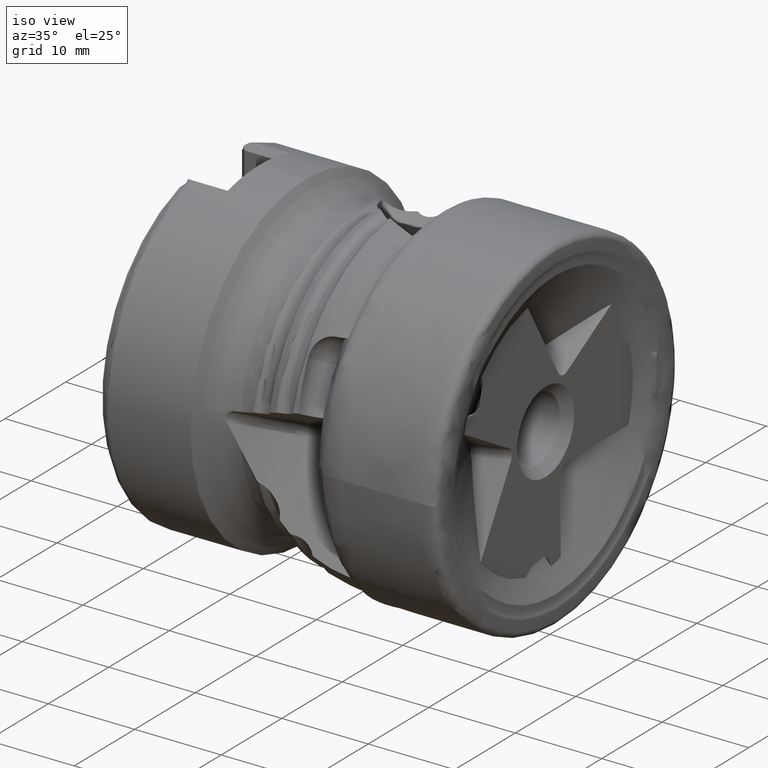
[diagram: clean part render]
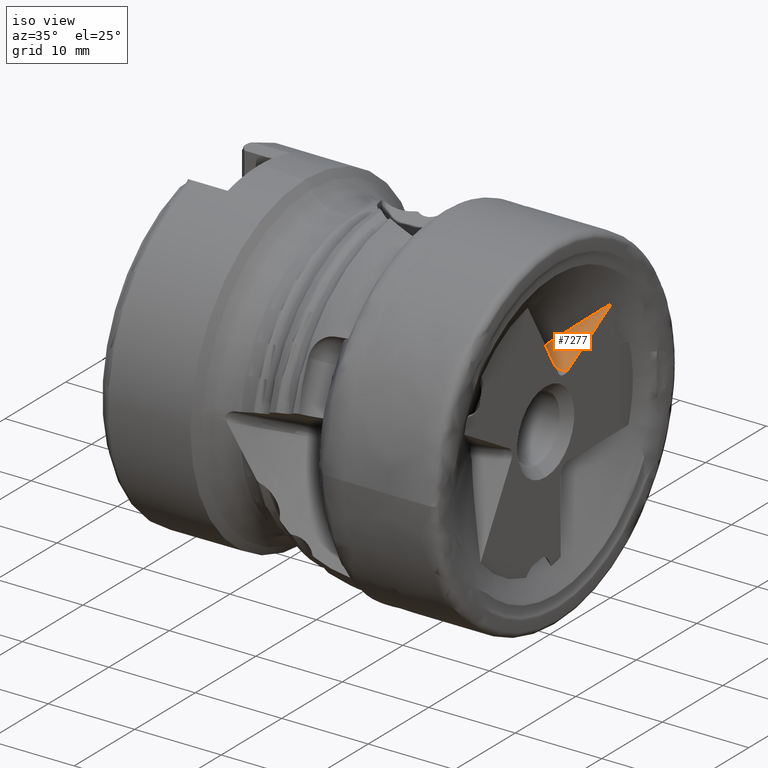
[diagram: same view with one face highlighted and labeled with its STEP entity id]
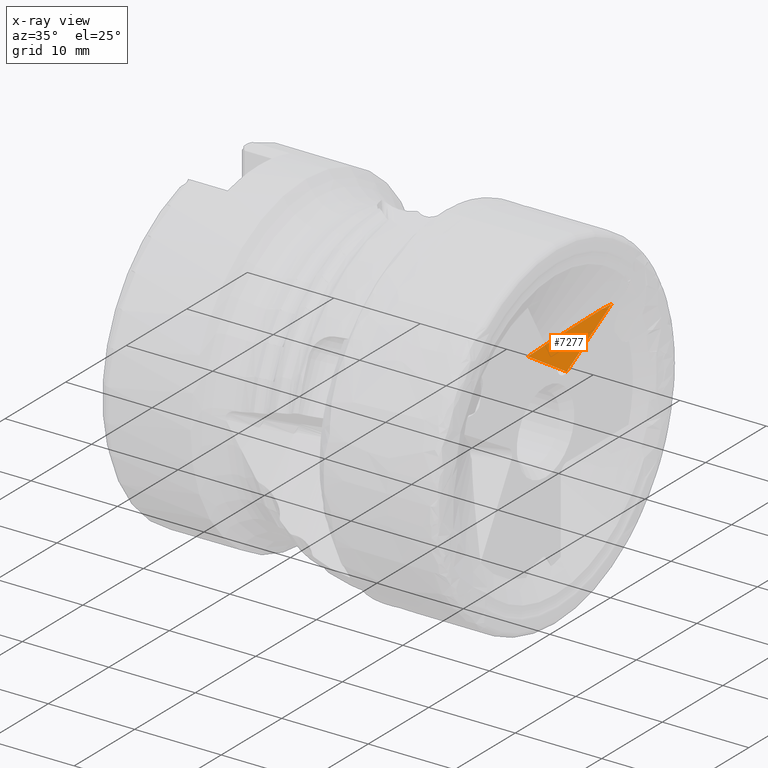
[diagram: x-ray of the same camera — body ghosted, the highlighted face saturated]
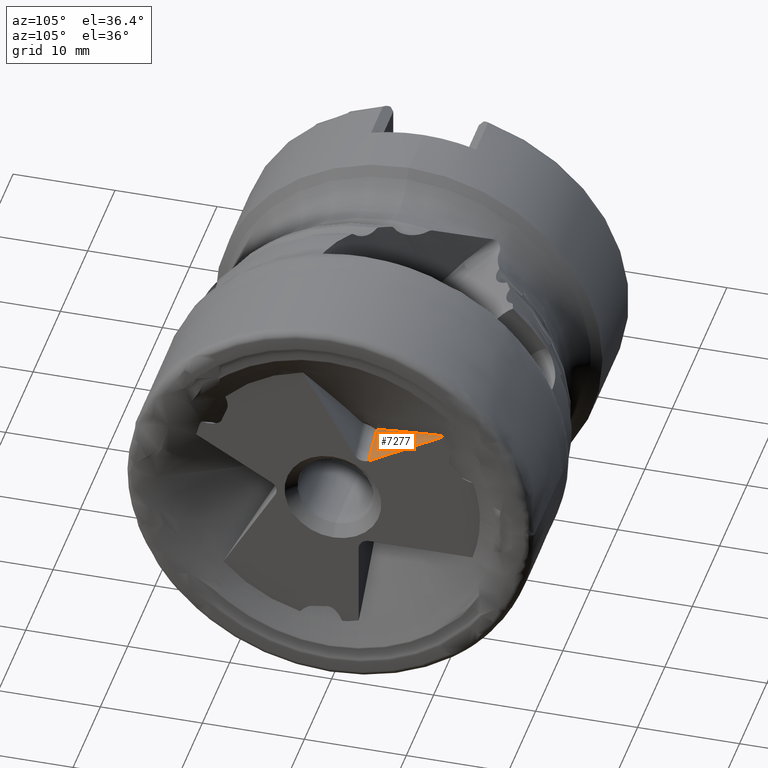
[diagram: same view with one face highlighted and labeled with its STEP entity id]
A machine part, iso view. The second image highlights one B-rep face of the part: STEP entity #7277.
The next image is the same camera in x-ray: the body ghosted, the highlighted face saturated — about 0% of this face is hidden behind the body in this view.
A second angle (auxiliary view) of the same face is appended — the face is thin or edge-on in the first view.
In plain terms, the highlighted planar face has unit normal (-0.1638, 0.4932, -0.8543).
Its self-contained STEP definition (entity closure, byte-faithful):
#101 = DIRECTION ( 'NONE',  ( 0.5051233782756463500, 0.7858282851161758600, 0.3568252780154015900 ) ) ;
#168 = CARTESIAN_POINT ( 'NONE',  ( -3.808434776103115200, 4.956872955140047700, 6.406747380487640700 ) ) ;
#286 = LINE ( 'NONE', #5753, #1492 ) ;
#423 = CARTESIAN_POINT ( 'NONE',  ( -0.5000000000000000000, 2.302259119376288700, 4.239611569003615800 ) ) ;
#957 = VERTEX_POINT ( 'NONE', #9761 ) ;
#1148 = CARTESIAN_POINT ( 'NONE',  ( -4.572935408956581700, 3.452799461095932300, 5.684986578345902200 ) ) ;
#1163 = ORIENTED_EDGE ( 'NONE', *, *, #5284, .T. ) ;
#1492 = VECTOR ( 'NONE', #101, 999.9999999999998900 ) ;
#1659 = B_SPLINE_CURVE_WITH_KNOTS ( 'NONE', 3,
 ( #168, #5915, #3026, #2113, #6944, #11786, #1148, #11821, #9877, #7902 ),
 .UNSPECIFIED., .F., .F.,
 ( 4, 2, 2, 2, 4 ),
 ( 0.007370055923948340100, 0.008471097018521665500, 0.009021617565808326400, 0.009296877839451657800, 0.009572138113094989100 ),
 .UNSPECIFIED. ) ;
#1664 = ORIENTED_EDGE ( 'NONE', *, *, #10298, .T. ) ;
#1960 = CARTESIAN_POINT ( 'NONE',  ( -1.983503647357787400, 8.349349530234619000, 8.015408151386662200 ) ) ;
#2113 = CARTESIAN_POINT ( 'NONE',  ( -4.347696269150403300, 3.905419061104956400, 5.903110115778193100 ) ) ;
#2496 = CARTESIAN_POINT ( 'NONE',  ( -0.5000000000000000000, 3.502898840190706900, 4.932801235015585200 ) ) ;
#2590 = B_SPLINE_CURVE_WITH_KNOTS ( 'NONE', 3,
 ( #3893, #8712, #1960, #11594, #4916, #11723, #2927, #10665 ),
 .UNSPECIFIED., .F., .F.,
 ( 4, 2, 2, 4 ),
 ( 0.001108133681800650300, 0.004239094802874494900, 0.005804575363411417500, 0.007370055923948340100 ),
 .UNSPECIFIED. ) ;
#2927 = CARTESIAN_POINT ( 'NONE',  ( -3.586330093864948100, 5.382976207936654800, 6.610162826054246200 ) ) ;
#3026 = CARTESIAN_POINT ( 'NONE',  ( -4.119295140267611000, 4.356963742672539800, 6.120006640412767300 ) ) ;
#3071 = VERTEX_POINT ( 'NONE', #2496 ) ;
#3112 = VERTEX_POINT ( 'NONE', #4515 ) ;
#3151 = ORIENTED_EDGE ( 'NONE', *, *, #10215, .F. ) ;
#3803 = DIRECTION ( 'NONE',  ( -0.1638425078055066600, 0.4932432545499274600, -0.8543223773710940700 ) ) ;
#3893 = CARTESIAN_POINT ( 'NONE',  ( -1.049879336879125000, 10.03805251447310600, 8.811330189188552700 ) ) ;
#4515 = CARTESIAN_POINT ( 'NONE',  ( -4.725802602635708300, 3.151973566747964500, 5.540621638278405000 ) ) ;
#4654 = LINE ( 'NONE', #423, #5401 ) ;
#4660 = ORIENTED_EDGE ( 'NONE', *, *, #5011, .T. ) ;
#4916 = CARTESIAN_POINT ( 'NONE',  ( -2.901768178545031800, 6.655082601923331800, 7.213328060395024700 ) ) ;
#5011 = EDGE_CURVE ( 'NONE', #3112, #3071, #6076, .T. ) ;
#5247 = CARTESIAN_POINT ( 'NONE',  ( -1.049879336879125000, 10.03805251447310600, 8.811330189188552700 ) ) ;
#5284 = EDGE_CURVE ( 'NONE', #11485, #3112, #1659, .T. ) ;
#5401 = VECTOR ( 'NONE', #6348, 999.9999999999998900 ) ;
#5753 = CARTESIAN_POINT ( 'NONE',  ( 2.652577817462001200, 15.79802261572684300, 11.42679080783555500 ) ) ;
#5915 = CARTESIAN_POINT ( 'NONE',  ( -3.964646477868034600, 4.657184026585406800, 6.263680279888859600 ) ) ;
#6076 = LINE ( 'NONE', #7286, #6989 ) ;
#6348 = DIRECTION ( 'NONE',  ( 0.0000000000000000000, -0.8660254037844363800, -0.5000000000000040000 ) ) ;
#6759 = CARTESIAN_POINT ( 'NONE',  ( -8.681716573700255100, 19.27794345124805600, 15.60962247699862700 ) ) ;
#6797 = AXIS2_PLACEMENT_3D ( 'NONE', #6759, #3803, #6798 ) ;
#6798 = DIRECTION ( 'NONE',  ( 0.9864865090998470300, 0.08192125390275398200, -0.1418917739793185700 ) ) ;
#6944 = CARTESIAN_POINT ( 'NONE',  ( -4.423066576884291800, 3.754644648713802500, 5.830515035419511000 ) ) ;
#6989 = VECTOR ( 'NONE', #11110, 1000.000000000000000 ) ;
#7152 = ORIENTED_EDGE ( 'NONE', *, *, #9994, .F. ) ;
#7277 = ADVANCED_FACE ( 'NONE', ( #8093 ), #9604, .F. ) ;
#7286 = CARTESIAN_POINT ( 'NONE',  ( -8.681716573700251500, 2.823460779343763200, 6.109622476998547200 ) ) ;
#7902 = CARTESIAN_POINT ( 'NONE',  ( -4.725802602635708300, 3.151973566747964500, 5.540621638278405000 ) ) ;
#8093 = FACE_OUTER_BOUND ( 'NONE', #10607, .T. ) ;
#8712 = CARTESIAN_POINT ( 'NONE',  ( -1.518100563117627200, 9.194211702949678200, 8.413934244430672400 ) ) ;
#9604 = PLANE ( 'NONE',  #6797 ) ;
#9761 = CARTESIAN_POINT ( 'NONE',  ( -0.4999999999999995600, 10.89350833953440300, 9.199771618937120400 ) ) ;
#9877 = CARTESIAN_POINT ( 'NONE',  ( -4.680202318601631700, 3.224670023805274300, 5.573847704845647400 ) ) ;
#9939 = CARTESIAN_POINT ( 'NONE',  ( -3.808434776103115200, 4.956872955140047700, 6.406747380487640700 ) ) ;
#9994 = EDGE_CURVE ( 'NONE', #10697, #957, #286, .T. ) ;
#10215 = EDGE_CURVE ( 'NONE', #957, #3071, #4654, .T. ) ;
#10298 = EDGE_CURVE ( 'NONE', #10697, #11485, #2590, .T. ) ;
#10607 = EDGE_LOOP ( 'NONE', ( #7152, #1664, #1163, #4660, #3151 ) ) ;
#10665 = CARTESIAN_POINT ( 'NONE',  ( -3.808434776103115200, 4.956872955140047700, 6.406747380487640700 ) ) ;
#10697 = VERTEX_POINT ( 'NONE', #5247 ) ;
#11110 = DIRECTION ( 'NONE',  ( 0.9864865090998470300, 0.08192125390275414900, -0.1418917739793184300 ) ) ;
#11485 = VERTEX_POINT ( 'NONE', #9939 ) ;
#11594 = CARTESIAN_POINT ( 'NONE',  ( -2.672021976822509500, 7.078588119555344200, 7.413778207229082500 ) ) ;
#11723 = CARTESIAN_POINT ( 'NONE',  ( -3.361057188617482300, 5.808002423065898900, 6.812348839739780900 ) ) ;
#11786 = CARTESIAN_POINT ( 'NONE',  ( -4.535735599828197600, 3.528351660274500600, 5.721472457001785200 ) ) ;
#11821 = CARTESIAN_POINT ( 'NONE',  ( -4.645920895979136500, 3.301214328711748800, 5.611466066095419900 ) ) ;